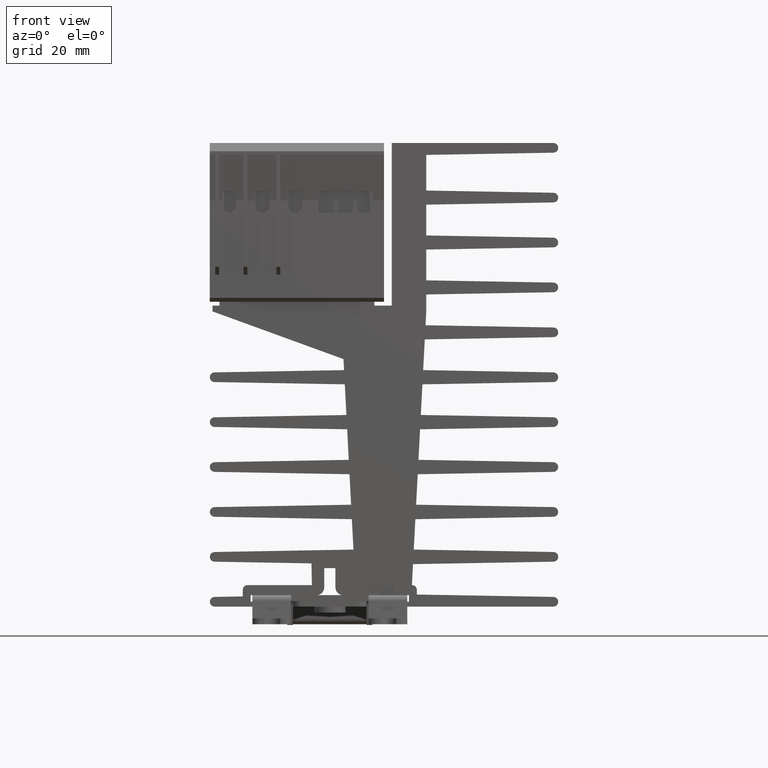
[diagram: clean part render]
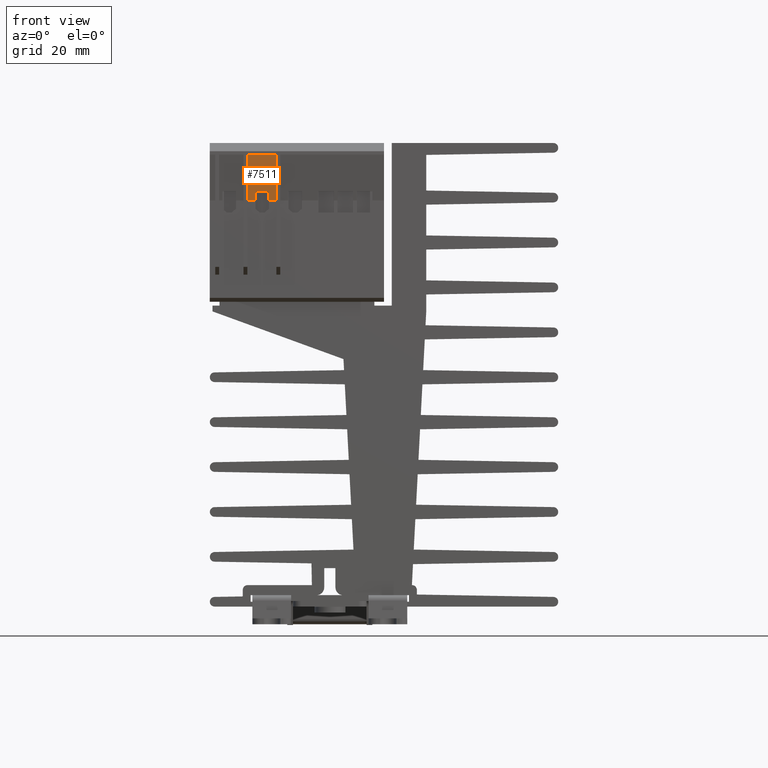
[diagram: same view with one face highlighted and labeled with its STEP entity id]
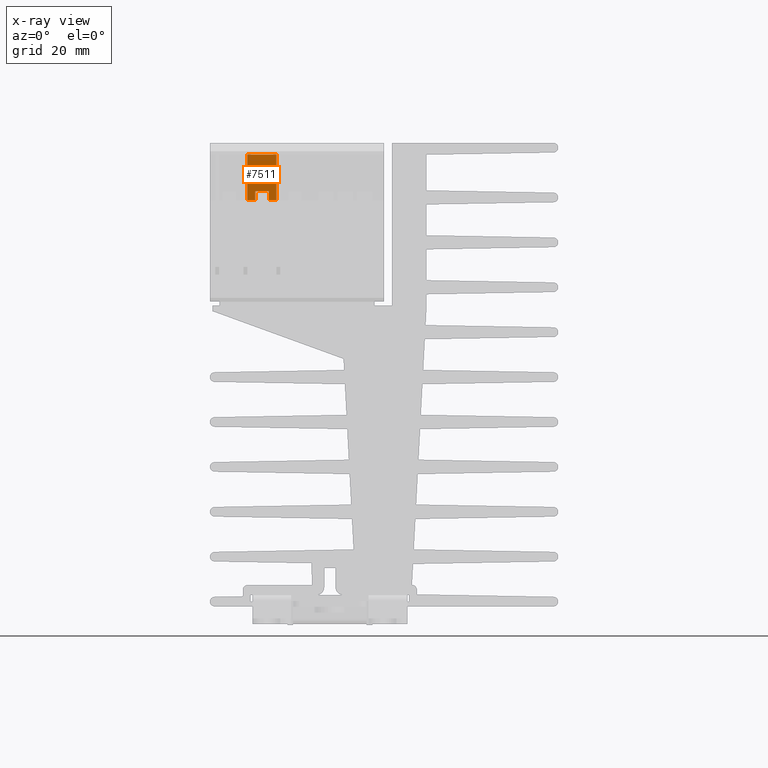
[diagram: x-ray of the same camera — body ghosted, the highlighted face saturated]
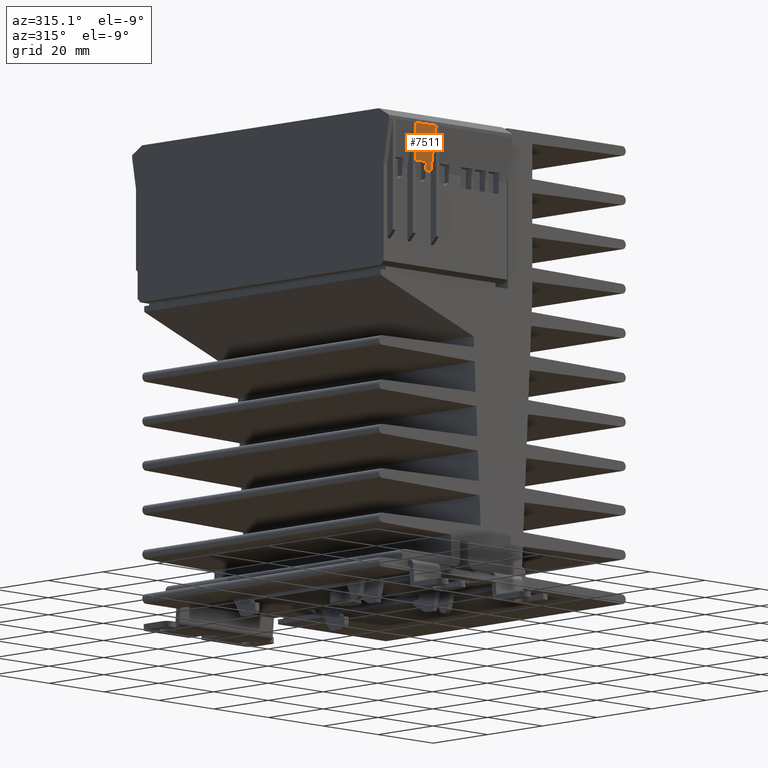
[diagram: same view with one face highlighted and labeled with its STEP entity id]
A machine part, front view. The second image highlights one B-rep face of the part: STEP entity #7511.
The next image is the same camera in x-ray: the body ghosted, the highlighted face saturated — about 0% of this face is hidden behind the body in this view.
A second angle (auxiliary view) of the same face is appended — the face is thin or edge-on in the first view.
In plain terms, the highlighted planar face has unit normal (0, 0.9859, 0.1671).
Its self-contained STEP definition (entity closure, byte-faithful):
#5 = LINE ( 'NONE', #3275, #2520 ) ;
#9 = EDGE_CURVE ( 'NONE', #1496, #8697, #13847, .T. ) ;
#46 = DIRECTION ( 'NONE',  ( -1.000000000000000000, 1.898848591474174840E-34, 3.218387443176560151E-35 ) ) ;
#189 = EDGE_CURVE ( 'NONE', #6943, #10105, #5, .T. ) ;
#208 = EDGE_CURVE ( 'NONE', #10105, #7932, #13336, .T. ) ;
#808 = DIRECTION ( 'NONE',  ( -0.000000000000000000, 0.1671082301075359489, -0.9859385576344636970 ) ) ;
#811 = EDGE_CURVE ( 'NONE', #8697, #6943, #2441, .T. ) ;
#881 = CARTESIAN_POINT ( 'NONE',  ( -0.4232283464566928832, -1.850393700787401619, 1.496062992125984259 ) ) ;
#1087 = VECTOR ( 'NONE', #1975, 39.37007874015748143 ) ;
#1164 = EDGE_CURVE ( 'NONE', #1726, #11332, #9737, .T. ) ;
#1181 = LINE ( 'NONE', #11882, #1087 ) ;
#1395 = DIRECTION ( 'NONE',  ( 1.000000000000000000, 0.000000000000000000, 0.000000000000000000 ) ) ;
#1496 = VERTEX_POINT ( 'NONE', #6917 ) ;
#1726 = VERTEX_POINT ( 'NONE', #9886 ) ;
#1975 = DIRECTION ( 'NONE',  ( -1.000000000000000000, 1.898848591474174840E-34, 3.218387443176560151E-35 ) ) ;
#2068 = ORIENTED_EDGE ( 'NONE', *, *, #5165, .F. ) ;
#2315 = VECTOR ( 'NONE', #46, 39.37007874015748143 ) ;
#2441 = LINE ( 'NONE', #6786, #2315 ) ;
#2520 = VECTOR ( 'NONE', #12482, 39.37007874015748854 ) ;
#2627 = EDGE_CURVE ( 'NONE', #7932, #12124, #7151, .T. ) ;
#2808 = ORIENTED_EDGE ( 'NONE', *, *, #7609, .F. ) ;
#3125 = CARTESIAN_POINT ( 'NONE',  ( -0.5039370078740157410, -1.850393700787401619, 1.496062992125984259 ) ) ;
#3229 = CARTESIAN_POINT ( 'NONE',  ( -0.4232283464566928832, -1.787001201121047433, 1.122047244094488194 ) ) ;
#3275 = CARTESIAN_POINT ( 'NONE',  ( -0.2854330708661417804, -1.850393700787401619, 1.496062992125984259 ) ) ;
#4066 = CARTESIAN_POINT ( 'NONE',  ( -0.2086614173228346636, -1.850393700787401619, 1.496062992125984259 ) ) ;
#4600 = VECTOR ( 'NONE', #6591, 39.37007874015748854 ) ;
#4988 = CARTESIAN_POINT ( 'NONE',  ( -0.2086614173228346636, -1.771653543307086576, 1.031496062992126150 ) ) ;
#5165 = EDGE_CURVE ( 'NONE', #12124, #1726, #1181, .T. ) ;
#5318 = DIRECTION ( 'NONE',  ( 1.925929944387234784E-34, 0.9859385576344638080, 0.1671082301075359766 ) ) ;
#5406 = ORIENTED_EDGE ( 'NONE', *, *, #208, .F. ) ;
#5777 = DIRECTION ( 'NONE',  ( -1.000000000000000000, 1.898848591474174840E-34, 3.218387443176560151E-35 ) ) ;
#5806 = ORIENTED_EDGE ( 'NONE', *, *, #811, .F. ) ;
#6591 = DIRECTION ( 'NONE',  ( 0.000000000000000000, -0.1671082301075359489, 0.9859385576344636970 ) ) ;
#6706 = VECTOR ( 'NONE', #808, 39.37007874015748854 ) ;
#6786 = CARTESIAN_POINT ( 'NONE',  ( 0.8858267716535432879, -1.771653543307086576, 1.031496062992126150 ) ) ;
#6908 = CARTESIAN_POINT ( 'NONE',  ( 0.8858267716535432879, -1.787001201121047433, 1.122047244094488194 ) ) ;
#6917 = CARTESIAN_POINT ( 'NONE',  ( -0.2086614173228346636, -1.850393700787401619, 1.496062992125984259 ) ) ;
#6943 = VERTEX_POINT ( 'NONE', #10151 ) ;
#7151 = LINE ( 'NONE', #881, #6706 ) ;
#7511 = ADVANCED_FACE ( 'NONE', ( #11745 ), #10747, .F. ) ;
#7560 = VECTOR ( 'NONE', #8418, 39.37007874015748854 ) ;
#7609 = EDGE_CURVE ( 'NONE', #11332, #1496, #8734, .T. ) ;
#7708 = CARTESIAN_POINT ( 'NONE',  ( -0.4232283464566928832, -1.771653543307086576, 1.031496062992126150 ) ) ;
#7932 = VERTEX_POINT ( 'NONE', #3229 ) ;
#8418 = DIRECTION ( 'NONE',  ( -0.000000000000000000, 0.1671082301075359489, -0.9859385576344636970 ) ) ;
#8697 = VERTEX_POINT ( 'NONE', #4988 ) ;
#8726 = ORIENTED_EDGE ( 'NONE', *, *, #189, .F. ) ;
#8734 = LINE ( 'NONE', #11163, #13638 ) ;
#8802 = CARTESIAN_POINT ( 'NONE',  ( -0.5039370078740157410, -1.850393700787401619, 1.496062992125984259 ) ) ;
#9386 = VECTOR ( 'NONE', #5777, 39.37007874015748143 ) ;
#9671 = ORIENTED_EDGE ( 'NONE', *, *, #9, .F. ) ;
#9737 = LINE ( 'NONE', #8802, #4600 ) ;
#9884 = ORIENTED_EDGE ( 'NONE', *, *, #1164, .F. ) ;
#9886 = CARTESIAN_POINT ( 'NONE',  ( -0.5039370078740157410, -1.771653543307086576, 1.031496062992126150 ) ) ;
#10105 = VERTEX_POINT ( 'NONE', #13236 ) ;
#10151 = CARTESIAN_POINT ( 'NONE',  ( -0.2854330708661417804, -1.771653543307086576, 1.031496062992126150 ) ) ;
#10213 = AXIS2_PLACEMENT_3D ( 'NONE', #10678, #5318, #13960 ) ;
#10678 = CARTESIAN_POINT ( 'NONE',  ( 0.8858267716535432879, -1.850393700787401619, 1.496062992125984259 ) ) ;
#10747 = PLANE ( 'NONE',  #10213 ) ;
#11163 = CARTESIAN_POINT ( 'NONE',  ( -1.886744094488189036E-16, -1.850393700787401619, 1.496062992125984259 ) ) ;
#11199 = EDGE_LOOP ( 'NONE', ( #5406, #8726, #5806, #9671, #2808, #9884, #2068, #13710 ) ) ;
#11332 = VERTEX_POINT ( 'NONE', #3125 ) ;
#11745 = FACE_OUTER_BOUND ( 'NONE', #11199, .T. ) ;
#11882 = CARTESIAN_POINT ( 'NONE',  ( 0.8858267716535432879, -1.771653543307086576, 1.031496062992126150 ) ) ;
#12124 = VERTEX_POINT ( 'NONE', #7708 ) ;
#12482 = DIRECTION ( 'NONE',  ( 0.000000000000000000, -0.1671082301075359489, 0.9859385576344636970 ) ) ;
#13236 = CARTESIAN_POINT ( 'NONE',  ( -0.2854330708661417804, -1.787001201121047433, 1.122047244094488194 ) ) ;
#13336 = LINE ( 'NONE', #6908, #9386 ) ;
#13638 = VECTOR ( 'NONE', #1395, 39.37007874015748143 ) ;
#13710 = ORIENTED_EDGE ( 'NONE', *, *, #2627, .F. ) ;
#13847 = LINE ( 'NONE', #4066, #7560 ) ;
#13960 = DIRECTION ( 'NONE',  ( 0.000000000000000000, -0.1671082301075359489, 0.9859385576344636970 ) ) ;